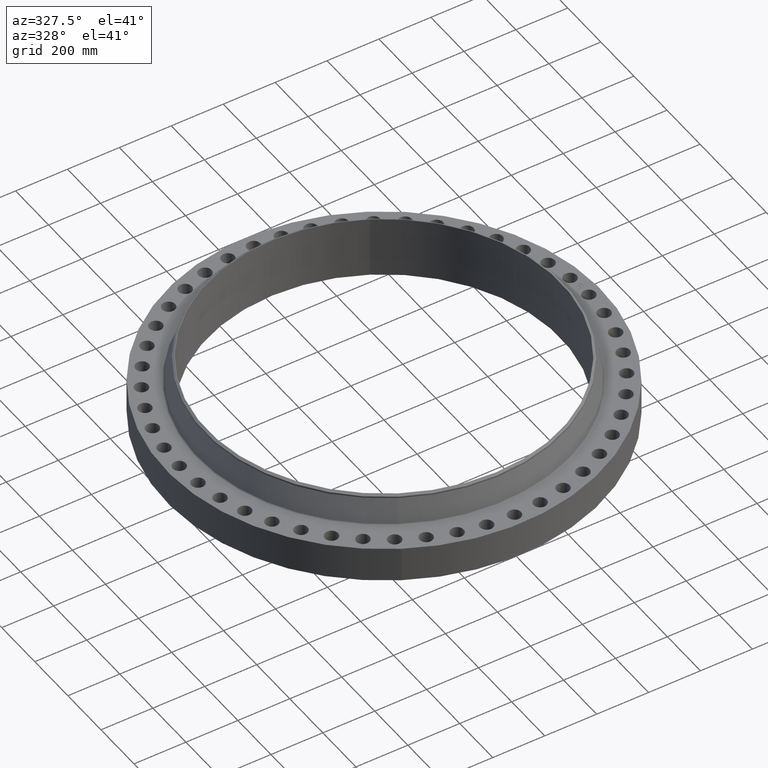
[diagram: clean part render]
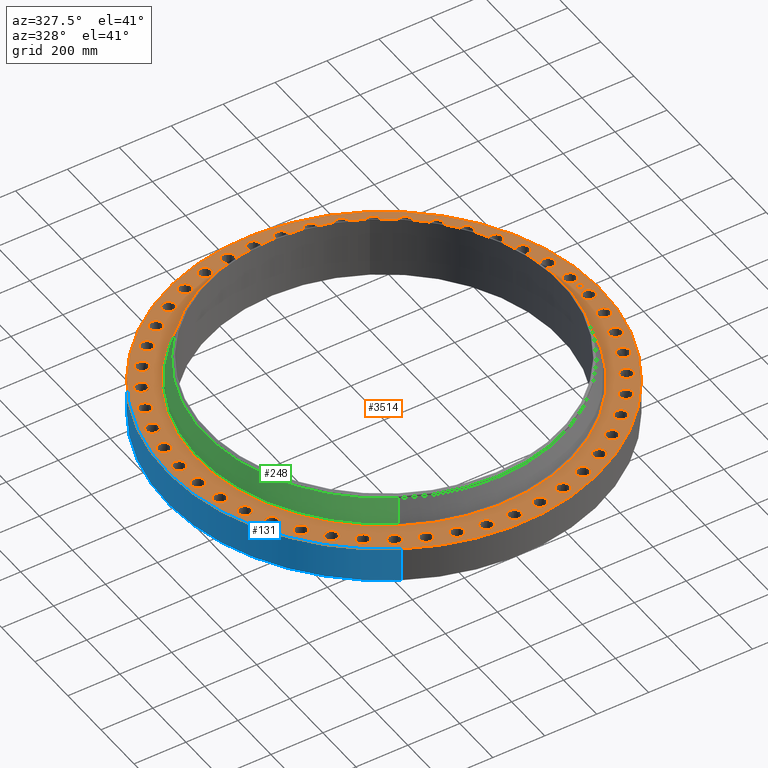
[diagram: same view with three faces highlighted in distinct colors, each labeled with its STEP entity id]
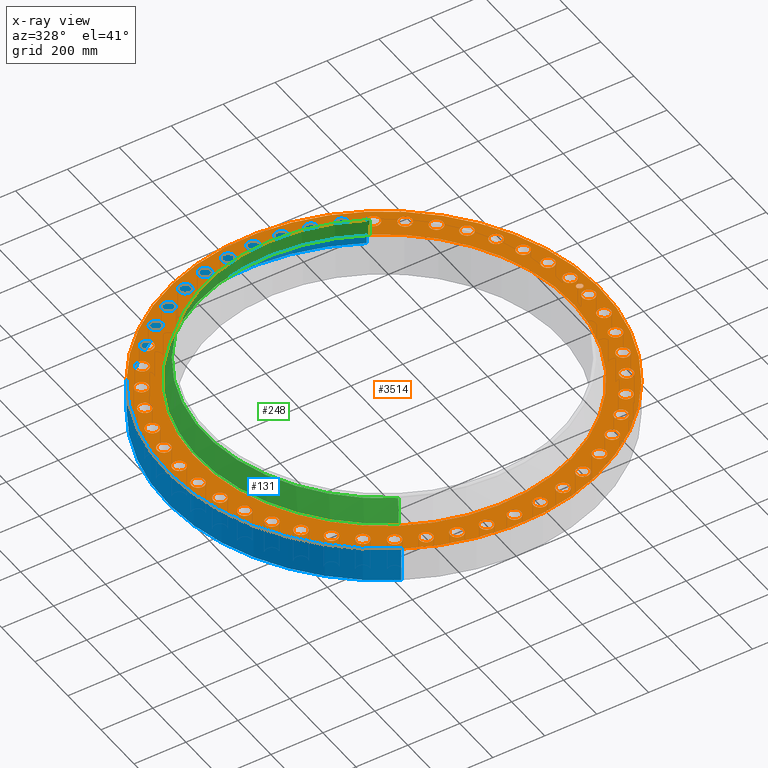
[diagram: x-ray of the same camera — body ghosted, the three highlighted faces saturated]
A machine part, auxiliary view with three faces highlighted in distinct colors.
The next image is the same camera in x-ray (body ghosted, the three faces saturated) — at least one of them is partly hidden behind the body in this view.
Their STEP definitions:

[orange] entity #3514 — the highlighted planar face has unit normal (0, 0, -1).
#65=AXIS2_PLACEMENT_3D('Circle Axis2P3D',#63,#64,$) ;
#82=AXIS2_PLACEMENT_3D('Circle Axis2P3D',#80,#81,$) ;
#115=AXIS2_PLACEMENT_3D('Circle Axis2P3D',#113,#114,$) ;
#139=AXIS2_PLACEMENT_3D('Circle Axis2P3D',#137,#138,$) ;
#156=AXIS2_PLACEMENT_3D('Circle Axis2P3D',#154,#155,$) ;
#191=AXIS2_PLACEMENT_3D('Circle Axis2P3D',#189,#190,$) ;
#1291=AXIS2_PLACEMENT_3D('Circle Axis2P3D',#1289,#1290,$) ;
#1303=AXIS2_PLACEMENT_3D('Circle Axis2P3D',#1301,#1302,$) ;
#1334=AXIS2_PLACEMENT_3D('Circle Axis2P3D',#1332,#1333,$) ;
#1346=AXIS2_PLACEMENT_3D('Circle Axis2P3D',#1344,#1345,$) ;
#1377=AXIS2_PLACEMENT_3D('Circle Axis2P3D',#1375,#1376,$) ;
#1389=AXIS2_PLACEMENT_3D('Circle Axis2P3D',#1387,#1388,$) ;
#1420=AXIS2_PLACEMENT_3D('Circle Axis2P3D',#1418,#1419,$) ;
#1432=AXIS2_PLACEMENT_3D('Circle Axis2P3D',#1430,#1431,$) ;
#1463=AXIS2_PLACEMENT_3D('Circle Axis2P3D',#1461,#1462,$) ;
#1475=AXIS2_PLACEMENT_3D('Circle Axis2P3D',#1473,#1474,$) ;
#1506=AXIS2_PLACEMENT_3D('Circle Axis2P3D',#1504,#1505,$) ;
#1518=AXIS2_PLACEMENT_3D('Circle Axis2P3D',#1516,#1517,$) ;
#1549=AXIS2_PLACEMENT_3D('Circle Axis2P3D',#1547,#1548,$) ;
#1561=AXIS2_PLACEMENT_3D('Circle Axis2P3D',#1559,#1560,$) ;
#1592=AXIS2_PLACEMENT_3D('Circle Axis2P3D',#1590,#1591,$) ;
#1604=AXIS2_PLACEMENT_3D('Circle Axis2P3D',#1602,#1603,$) ;
#1635=AXIS2_PLACEMENT_3D('Circle Axis2P3D',#1633,#1634,$) ;
#1647=AXIS2_PLACEMENT_3D('Circle Axis2P3D',#1645,#1646,$) ;
#1678=AXIS2_PLACEMENT_3D('Circle Axis2P3D',#1676,#1677,$) ;
#1690=AXIS2_PLACEMENT_3D('Circle Axis2P3D',#1688,#1689,$) ;
#1721=AXIS2_PLACEMENT_3D('Circle Axis2P3D',#1719,#1720,$) ;
#1733=AXIS2_PLACEMENT_3D('Circle Axis2P3D',#1731,#1732,$) ;
#1764=AXIS2_PLACEMENT_3D('Circle Axis2P3D',#1762,#1763,$) ;
#1776=AXIS2_PLACEMENT_3D('Circle Axis2P3D',#1774,#1775,$) ;
#1807=AXIS2_PLACEMENT_3D('Circle Axis2P3D',#1805,#1806,$) ;
#1819=AXIS2_PLACEMENT_3D('Circle Axis2P3D',#1817,#1818,$) ;
#1850=AXIS2_PLACEMENT_3D('Circle Axis2P3D',#1848,#1849,$) ;
#1862=AXIS2_PLACEMENT_3D('Circle Axis2P3D',#1860,#1861,$) ;
#1893=AXIS2_PLACEMENT_3D('Circle Axis2P3D',#1891,#1892,$) ;
#1905=AXIS2_PLACEMENT_3D('Circle Axis2P3D',#1903,#1904,$) ;
#1936=AXIS2_PLACEMENT_3D('Circle Axis2P3D',#1934,#1935,$) ;
#1948=AXIS2_PLACEMENT_3D('Circle Axis2P3D',#1946,#1947,$) ;
#1979=AXIS2_PLACEMENT_3D('Circle Axis2P3D',#1977,#1978,$) ;
#1991=AXIS2_PLACEMENT_3D('Circle Axis2P3D',#1989,#1990,$) ;
#2022=AXIS2_PLACEMENT_3D('Circle Axis2P3D',#2020,#2021,$) ;
#2034=AXIS2_PLACEMENT_3D('Circle Axis2P3D',#2032,#2033,$) ;
#2065=AXIS2_PLACEMENT_3D('Circle Axis2P3D',#2063,#2064,$) ;
#2077=AXIS2_PLACEMENT_3D('Circle Axis2P3D',#2075,#2076,$) ;
#2108=AXIS2_PLACEMENT_3D('Circle Axis2P3D',#2106,#2107,$) ;
#2120=AXIS2_PLACEMENT_3D('Circle Axis2P3D',#2118,#2119,$) ;
#2151=AXIS2_PLACEMENT_3D('Circle Axis2P3D',#2149,#2150,$) ;
#2163=AXIS2_PLACEMENT_3D('Circle Axis2P3D',#2161,#2162,$) ;
#2194=AXIS2_PLACEMENT_3D('Circle Axis2P3D',#2192,#2193,$) ;
#2206=AXIS2_PLACEMENT_3D('Circle Axis2P3D',#2204,#2205,$) ;
#2237=AXIS2_PLACEMENT_3D('Circle Axis2P3D',#2235,#2236,$) ;
#2249=AXIS2_PLACEMENT_3D('Circle Axis2P3D',#2247,#2248,$) ;
#2280=AXIS2_PLACEMENT_3D('Circle Axis2P3D',#2278,#2279,$) ;
#2292=AXIS2_PLACEMENT_3D('Circle Axis2P3D',#2290,#2291,$) ;
#2323=AXIS2_PLACEMENT_3D('Circle Axis2P3D',#2321,#2322,$) ;
#2335=AXIS2_PLACEMENT_3D('Circle Axis2P3D',#2333,#2334,$) ;
#2366=AXIS2_PLACEMENT_3D('Circle Axis2P3D',#2364,#2365,$) ;
#2378=AXIS2_PLACEMENT_3D('Circle Axis2P3D',#2376,#2377,$) ;
#2409=AXIS2_PLACEMENT_3D('Circle Axis2P3D',#2407,#2408,$) ;
#2421=AXIS2_PLACEMENT_3D('Circle Axis2P3D',#2419,#2420,$) ;
#2452=AXIS2_PLACEMENT_3D('Circle Axis2P3D',#2450,#2451,$) ;
#2464=AXIS2_PLACEMENT_3D('Circle Axis2P3D',#2462,#2463,$) ;
#2495=AXIS2_PLACEMENT_3D('Circle Axis2P3D',#2493,#2494,$) ;
#2507=AXIS2_PLACEMENT_3D('Circle Axis2P3D',#2505,#2506,$) ;
#2538=AXIS2_PLACEMENT_3D('Circle Axis2P3D',#2536,#2537,$) ;
#2550=AXIS2_PLACEMENT_3D('Circle Axis2P3D',#2548,#2549,$) ;
#2581=AXIS2_PLACEMENT_3D('Circle Axis2P3D',#2579,#2580,$) ;
#2593=AXIS2_PLACEMENT_3D('Circle Axis2P3D',#2591,#2592,$) ;
#2624=AXIS2_PLACEMENT_3D('Circle Axis2P3D',#2622,#2623,$) ;
#2636=AXIS2_PLACEMENT_3D('Circle Axis2P3D',#2634,#2635,$) ;
#2667=AXIS2_PLACEMENT_3D('Circle Axis2P3D',#2665,#2666,$) ;
#2679=AXIS2_PLACEMENT_3D('Circle Axis2P3D',#2677,#2678,$) ;
#2710=AXIS2_PLACEMENT_3D('Circle Axis2P3D',#2708,#2709,$) ;
#2722=AXIS2_PLACEMENT_3D('Circle Axis2P3D',#2720,#2721,$) ;
#2753=AXIS2_PLACEMENT_3D('Circle Axis2P3D',#2751,#2752,$) ;
#2765=AXIS2_PLACEMENT_3D('Circle Axis2P3D',#2763,#2764,$) ;
#2796=AXIS2_PLACEMENT_3D('Circle Axis2P3D',#2794,#2795,$) ;
#2808=AXIS2_PLACEMENT_3D('Circle Axis2P3D',#2806,#2807,$) ;
#2839=AXIS2_PLACEMENT_3D('Circle Axis2P3D',#2837,#2838,$) ;
#2851=AXIS2_PLACEMENT_3D('Circle Axis2P3D',#2849,#2850,$) ;
#2882=AXIS2_PLACEMENT_3D('Circle Axis2P3D',#2880,#2881,$) ;
#2894=AXIS2_PLACEMENT_3D('Circle Axis2P3D',#2892,#2893,$) ;
#2925=AXIS2_PLACEMENT_3D('Circle Axis2P3D',#2923,#2924,$) ;
#2937=AXIS2_PLACEMENT_3D('Circle Axis2P3D',#2935,#2936,$) ;
#2968=AXIS2_PLACEMENT_3D('Circle Axis2P3D',#2966,#2967,$) ;
#2980=AXIS2_PLACEMENT_3D('Circle Axis2P3D',#2978,#2979,$) ;
#3011=AXIS2_PLACEMENT_3D('Circle Axis2P3D',#3009,#3010,$) ;
#3023=AXIS2_PLACEMENT_3D('Circle Axis2P3D',#3021,#3022,$) ;
#3054=AXIS2_PLACEMENT_3D('Circle Axis2P3D',#3052,#3053,$) ;
#3066=AXIS2_PLACEMENT_3D('Circle Axis2P3D',#3064,#3065,$) ;
#3097=AXIS2_PLACEMENT_3D('Circle Axis2P3D',#3095,#3096,$) ;
#3109=AXIS2_PLACEMENT_3D('Circle Axis2P3D',#3107,#3108,$) ;
#3140=AXIS2_PLACEMENT_3D('Circle Axis2P3D',#3138,#3139,$) ;
#3152=AXIS2_PLACEMENT_3D('Circle Axis2P3D',#3150,#3151,$) ;
#3183=AXIS2_PLACEMENT_3D('Circle Axis2P3D',#3181,#3182,$) ;
#3195=AXIS2_PLACEMENT_3D('Circle Axis2P3D',#3193,#3194,$) ;
#3226=AXIS2_PLACEMENT_3D('Circle Axis2P3D',#3224,#3225,$) ;
#3238=AXIS2_PLACEMENT_3D('Circle Axis2P3D',#3236,#3237,$) ;
#3269=AXIS2_PLACEMENT_3D('Circle Axis2P3D',#3267,#3268,$) ;
#3281=AXIS2_PLACEMENT_3D('Circle Axis2P3D',#3279,#3280,$) ;
#3294=AXIS2_PLACEMENT_3D('Plane Axis2P3D',#3291,#3292,#3293) ;
#3498=AXIS2_PLACEMENT_3D('Circle Axis2P3D',#3496,#3497,$) ;
#3507=AXIS2_PLACEMENT_3D('Circle Axis2P3D',#3505,#3506,$) ;
#46=CARTESIAN_POINT('Vertex',(30.1824174382,0.479425538606,5.32000000002)) ;
#60=CARTESIAN_POINT('Vertex',(31.937582562,-0.479425538606,5.32000000002)) ;
#63=CARTESIAN_POINT('Axis2P3D Location',(31.0600000001,0.,5.32000000002)) ;
#80=CARTESIAN_POINT('Axis2P3D Location',(31.0600000001,0.,5.32000000002)) ;
#110=CARTESIAN_POINT('Vertex',(-15.7922772417,-28.9075695888,5.32000000002)) ;
#113=CARTESIAN_POINT('Axis2P3D Location',(0.,0.,5.32000000002)) ;
#117=CARTESIAN_POINT('Vertex',(15.7922772417,28.9075695888,5.32000000002)) ;
#137=CARTESIAN_POINT('Axis2P3D Location',(0.,0.,5.32000000002)) ;
#154=CARTESIAN_POINT('Axis2P3D Location',(0.,0.,5.32000000002)) ;
#158=CARTESIAN_POINT('Vertex',(13.6324779361,24.9540834786,5.32000000002)) ;
#160=CARTESIAN_POINT('Vertex',(-13.6324779361,-24.9540834786,5.32000000002)) ;
#189=CARTESIAN_POINT('Axis2P3D Location',(0.,0.,5.32000000002)) ;
#1279=CARTESIAN_POINT('Vertex',(-29.986780263,3.46427203355,5.32000000002)) ;
#1286=CARTESIAN_POINT('Vertex',(-31.6017745258,4.6440150272,5.32000000002)) ;
#1289=CARTESIAN_POINT('Axis2P3D Location',(-30.7942773944,4.05414353037,5.32000000002)) ;
#1301=CARTESIAN_POINT('Axis2P3D Location',(-30.7942773944,4.05414353037,5.32000000002)) ;
#1322=CARTESIAN_POINT('Vertex',(29.2780609635,-7.34869495073,5.32000000002)) ;
#1329=CARTESIAN_POINT('Vertex',(30.7252513658,-8.72914413111,5.32000000002)) ;
#1332=CARTESIAN_POINT('Axis2P3D Location',(30.0016561647,-8.03891954092,5.32000000002)) ;
#1344=CARTESIAN_POINT('Axis2P3D Location',(30.0016561647,-8.03891954092,5.32000000002)) ;
#1365=CARTESIAN_POINT('Vertex',(-29.2780609635,7.34869495073,5.32000000002)) ;
#1372=CARTESIAN_POINT('Vertex',(-30.7252513658,8.72914413111,5.32000000002)) ;
#1375=CARTESIAN_POINT('Axis2P3D Location',(-30.0016561647,8.03891954092,5.32000000002)) ;
#1387=CARTESIAN_POINT('Axis2P3D Location',(-30.0016561647,8.03891954092,5.32000000002)) ;
#1408=CARTESIAN_POINT('Vertex',(28.0683859236,-11.1073796599,5.32000000002)) ;
#1415=CARTESIAN_POINT('Vertex',(29.3230106363,-12.6649151588,5.32000000002)) ;
#1418=CARTESIAN_POINT('Axis2P3D Location',(28.6956982799,-11.8861474093,5.32000000002)) ;
#1430=CARTESIAN_POINT('Axis2P3D Location',(28.6956982799,-11.8861474093,5.32000000002)) ;
#1451=CARTESIAN_POINT('Vertex',(-28.0683859236,11.1073796599,5.32000000002)) ;
#1458=CARTESIAN_POINT('Vertex',(-29.3230106363,12.6649151588,5.32000000002)) ;
#1461=CARTESIAN_POINT('Axis2P3D Location',(-28.6956982799,11.8861474093,5.32000000002)) ;
#1473=CARTESIAN_POINT('Axis2P3D Location',(-28.6956982799,11.8861474093,5.32000000002)) ;
#1494=CARTESIAN_POINT('Vertex',(26.3784530184,-14.6760140235,5.32000000002)) ;
#1501=CARTESIAN_POINT('Vertex',(27.4190450649,-16.3839859767,5.32000000002)) ;
#1504=CARTESIAN_POINT('Axis2P3D Location',(26.8987490417,-15.5300000001,5.32000000002)) ;
#1516=CARTESIAN_POINT('Axis2P3D Location',(26.8987490417,-15.5300000001,5.32000000002)) ;
#1537=CARTESIAN_POINT('Vertex',(-26.3784530184,14.6760140235,5.32000000002)) ;
#1544=CARTESIAN_POINT('Vertex',(-27.4190450649,16.3839859767,5.32000000002)) ;
#1547=CARTESIAN_POINT('Axis2P3D Location',(-26.8987490417,15.5300000001,5.32000000002)) ;
#1559=CARTESIAN_POINT('Axis2P3D Location',(-26.8987490417,15.5300000001,5.32000000002)) ;
#1580=CARTESIAN_POINT('Vertex',(24.2371774687,-17.9935377182,5.32000000002)) ;
#1587=CARTESIAN_POINT('Vertex',(25.0459320304,-19.822722252,5.32000000002)) ;
#1590=CARTESIAN_POINT('Axis2P3D Location',(24.6415547495,-18.9081299851,5.32000000002)) ;
#1602=CARTESIAN_POINT('Axis2P3D Location',(24.6415547495,-18.9081299851,5.32000000002)) ;
#1623=CARTESIAN_POINT('Vertex',(-24.2371774687,17.9935377182,5.32000000002)) ;
#1630=CARTESIAN_POINT('Vertex',(-25.0459320304,19.822722252,5.32000000002)) ;
#1633=CARTESIAN_POINT('Axis2P3D Location',(-24.6415547495,18.9081299851,5.32000000002)) ;
#1645=CARTESIAN_POINT('Axis2P3D Location',(-24.6415547495,18.9081299851,5.32000000002)) ;
#1666=CARTESIAN_POINT('Vertex',(21.6811970926,-21.0031869938,5.32000000002)) ;
#1673=CARTESIAN_POINT('Vertex',(22.2442761549,-22.9222862537,5.32000000002)) ;
#1676=CARTESIAN_POINT('Axis2P3D Location',(21.9627366237,-21.9627366237,5.32000000002)) ;
#1688=CARTESIAN_POINT('Axis2P3D Location',(21.9627366237,-21.9627366237,5.32000000002)) ;
#1709=CARTESIAN_POINT('Vertex',(-21.6811970926,21.0031869938,5.32000000002)) ;
#1716=CARTESIAN_POINT('Vertex',(-22.2442761549,22.9222862537,5.32000000002)) ;
#1719=CARTESIAN_POINT('Axis2P3D Location',(-21.9627366237,21.9627366237,5.32000000002)) ;
#1731=CARTESIAN_POINT('Axis2P3D Location',(-21.9627366237,21.9627366237,5.32000000002)) ;
#1752=CARTESIAN_POINT('Vertex',(18.7542454231,-23.6534659167,5.32000000002)) ;
#1759=CARTESIAN_POINT('Vertex',(19.0620145471,-25.6296435824,5.32000000002)) ;
#1762=CARTESIAN_POINT('Axis2P3D Location',(18.9081299851,-24.6415547495,5.32000000002)) ;
#1774=CARTESIAN_POINT('Axis2P3D Location',(18.9081299851,-24.6415547495,5.32000000002)) ;
#1795=CARTESIAN_POINT('Vertex',(-18.7542454231,23.6534659167,5.32000000002)) ;
#1802=CARTESIAN_POINT('Vertex',(-19.0620145471,25.6296435824,5.32000000002)) ;
#1805=CARTESIAN_POINT('Axis2P3D Location',(-18.9081299851,24.6415547495,5.32000000002)) ;
#1817=CARTESIAN_POINT('Axis2P3D Location',(-18.9081299851,24.6415547495,5.32000000002)) ;
#1838=CARTESIAN_POINT('Vertex',(15.5064034148,-25.8990274798,5.32000000002)) ;
#1845=CARTESIAN_POINT('Vertex',(15.5535965854,-27.8984706035,5.32000000002)) ;
#1848=CARTESIAN_POINT('Axis2P3D Location',(15.5300000001,-26.8987490417,5.32000000002)) ;
#1860=CARTESIAN_POINT('Axis2P3D Location',(15.5300000001,-26.8987490417,5.32000000002)) ;
#1881=CARTESIAN_POINT('Vertex',(-15.5064034148,25.8990274798,5.32000000002)) ;
#1888=CARTESIAN_POINT('Vertex',(-15.5535965854,27.8984706035,5.32000000002)) ;
#1891=CARTESIAN_POINT('Axis2P3D Location',(-15.5300000001,26.8987490417,5.32000000002)) ;
#1903=CARTESIAN_POINT('Axis2P3D Location',(-15.5300000001,26.8987490417,5.32000000002)) ;
#1924=CARTESIAN_POINT('Vertex',(11.9932425448,-27.7014495022,5.32000000002)) ;
#1931=CARTESIAN_POINT('Vertex',(11.7790522738,-29.6899470576,5.32000000002)) ;
#1934=CARTESIAN_POINT('Axis2P3D Location',(11.8861474093,-28.6956982799,5.32000000002)) ;
#1946=CARTESIAN_POINT('Axis2P3D Location',(11.8861474093,-28.6956982799,5.32000000002)) ;
#1967=CARTESIAN_POINT('Vertex',(-11.9932425448,27.7014495022,5.32000000002)) ;
#1974=CARTESIAN_POINT('Vertex',(-11.7790522738,29.6899470576,5.32000000002)) ;
#1977=CARTESIAN_POINT('Axis2P3D Location',(-11.8861474093,28.6956982799,5.32000000002)) ;
#1989=CARTESIAN_POINT('Axis2P3D Location',(-11.8861474093,28.6956982799,5.32000000002)) ;
#2010=CARTESIAN_POINT('Vertex',(8.27487396977,-29.0298920433,5.32000000002)) ;
#2017=CARTESIAN_POINT('Vertex',(7.80296511206,-30.973420286,5.32000000002)) ;
#2020=CARTESIAN_POINT('Axis2P3D Location',(8.03891954092,-30.0016561647,5.32000000002)) ;
#2032=CARTESIAN_POINT('Axis2P3D Location',(8.03891954092,-30.0016561647,5.32000000002)) ;
#2053=CARTESIAN_POINT('Vertex',(-8.27487396977,29.0298920433,5.32000000002)) ;
#2060=CARTESIAN_POINT('Vertex',(-7.80296511206,30.973420286,5.32000000002)) ;
#2063=CARTESIAN_POINT('Axis2P3D Location',(-8.03891954092,30.0016561647,5.32000000002)) ;
#2075=CARTESIAN_POINT('Axis2P3D Location',(-8.03891954092,30.0016561647,5.32000000002)) ;
#2096=CARTESIAN_POINT('Vertex',(4.41492000687,-29.861625083,5.32000000002)) ;
#2103=CARTESIAN_POINT('Vertex',(3.69336705387,-31.7269297058,5.32000000002)) ;
#2106=CARTESIAN_POINT('Axis2P3D Location',(4.05414353037,-30.7942773944,5.32000000002)) ;
#2118=CARTESIAN_POINT('Axis2P3D Location',(4.05414353037,-30.7942773944,5.32000000002)) ;
#2139=CARTESIAN_POINT('Vertex',(-4.41492000687,29.861625083,5.32000000002)) ;
#2146=CARTESIAN_POINT('Vertex',(-3.69336705387,31.7269297058,5.32000000002)) ;
#2149=CARTESIAN_POINT('Axis2P3D Location',(-4.05414353037,30.7942773944,5.32000000002)) ;
#2161=CARTESIAN_POINT('Axis2P3D Location',(-4.05414353037,30.7942773944,5.32000000002)) ;
#2182=CARTESIAN_POINT('Vertex',(0.479425538606,-30.1824174382,5.32000000002)) ;
#2189=CARTESIAN_POINT('Vertex',(-0.479425538606,-31.937582562,5.32000000002)) ;
#2192=CARTESIAN_POINT('Axis2P3D Location',(-2.57398327374E-015,-31.0600000001,5.32000000002)) ;
#2204=CARTESIAN_POINT('Axis2P3D Location',(-2.57398327374E-015,-31.0600000001,5.32000000002)) ;
#2225=CARTESIAN_POINT('Vertex',(-0.479425538606,30.1824174382,5.32000000002)) ;
#2232=CARTESIAN_POINT('Vertex',(0.479425538606,31.937582562,5.32000000002)) ;
#2235=CARTESIAN_POINT('Axis2P3D Location',(-1.22976968443E-015,31.0600000001,5.32000000002)) ;
#2247=CARTESIAN_POINT('Axis2P3D Location',(-1.22976968443E-015,31.0600000001,5.32000000002)) ;
#2268=CARTESIAN_POINT('Vertex',(-3.46427203355,-29.986780263,5.32000000002)) ;
#2275=CARTESIAN_POINT('Vertex',(-4.6440150272,-31.6017745258,5.32000000002)) ;
#2278=CARTESIAN_POINT('Axis2P3D Location',(-4.05414353037,-30.7942773944,5.32000000002)) ;
#2290=CARTESIAN_POINT('Axis2P3D Location',(-4.05414353037,-30.7942773944,5.32000000002)) ;
#2311=CARTESIAN_POINT('Vertex',(3.46427203355,29.986780263,5.32000000002)) ;
#2318=CARTESIAN_POINT('Vertex',(4.6440150272,31.6017745258,5.32000000002)) ;
#2321=CARTESIAN_POINT('Axis2P3D Location',(4.05414353037,30.7942773944,5.32000000002)) ;
#2333=CARTESIAN_POINT('Axis2P3D Location',(4.05414353037,30.7942773944,5.32000000002)) ;
#2354=CARTESIAN_POINT('Vertex',(-7.34869495073,-29.2780609635,5.32000000002)) ;
#2361=CARTESIAN_POINT('Vertex',(-8.72914413111,-30.7252513658,5.32000000002)) ;
#2364=CARTESIAN_POINT('Axis2P3D Location',(-8.03891954092,-30.0016561647,5.32000000002)) ;
#2376=CARTESIAN_POINT('Axis2P3D Location',(-8.03891954092,-30.0016561647,5.32000000002)) ;
#2397=CARTESIAN_POINT('Vertex',(7.34869495073,29.2780609635,5.32000000002)) ;
#2404=CARTESIAN_POINT('Vertex',(8.72914413111,30.7252513658,5.32000000002)) ;
#2407=CARTESIAN_POINT('Axis2P3D Location',(8.03891954092,30.0016561647,5.32000000002)) ;
#2419=CARTESIAN_POINT('Axis2P3D Location',(8.03891954092,30.0016561647,5.32000000002)) ;
#2440=CARTESIAN_POINT('Vertex',(-11.1073796599,-28.0683859236,5.32000000002)) ;
#2447=CARTESIAN_POINT('Vertex',(-12.6649151588,-29.3230106363,5.32000000002)) ;
#2450=CARTESIAN_POINT('Axis2P3D Location',(-11.8861474093,-28.6956982799,5.32000000002)) ;
#2462=CARTESIAN_POINT('Axis2P3D Location',(-11.8861474093,-28.6956982799,5.32000000002)) ;
#2483=CARTESIAN_POINT('Vertex',(11.1073796599,28.0683859236,5.32000000002)) ;
#2490=CARTESIAN_POINT('Vertex',(12.6649151588,29.3230106363,5.32000000002)) ;
#2493=CARTESIAN_POINT('Axis2P3D Location',(11.8861474093,28.6956982799,5.32000000002)) ;
#2505=CARTESIAN_POINT('Axis2P3D Location',(11.8861474093,28.6956982799,5.32000000002)) ;
#2526=CARTESIAN_POINT('Vertex',(-14.6760140235,-26.3784530184,5.32000000002)) ;
#2533=CARTESIAN_POINT('Vertex',(-16.3839859767,-27.4190450649,5.32000000002)) ;
#2536=CARTESIAN_POINT('Axis2P3D Location',(-15.5300000001,-26.8987490417,5.32000000002)) ;
#2548=CARTESIAN_POINT('Axis2P3D Location',(-15.5300000001,-26.8987490417,5.32000000002)) ;
#2569=CARTESIAN_POINT('Vertex',(14.6760140235,26.3784530184,5.32000000002)) ;
#2576=CARTESIAN_POINT('Vertex',(16.3839859767,27.4190450649,5.32000000002)) ;
#2579=CARTESIAN_POINT('Axis2P3D Location',(15.5300000001,26.8987490417,5.32000000002)) ;
#2591=CARTESIAN_POINT('Axis2P3D Location',(15.5300000001,26.8987490417,5.32000000002)) ;
#2612=CARTESIAN_POINT('Vertex',(-17.9935377182,-24.2371774687,5.32000000002)) ;
#2619=CARTESIAN_POINT('Vertex',(-19.822722252,-25.0459320304,5.32000000002)) ;
#2622=CARTESIAN_POINT('Axis2P3D Location',(-18.9081299851,-24.6415547495,5.32000000002)) ;
#2634=CARTESIAN_POINT('Axis2P3D Location',(-18.9081299851,-24.6415547495,5.32000000002)) ;
#2655=CARTESIAN_POINT('Vertex',(17.9935377182,24.2371774687,5.32000000002)) ;
#2662=CARTESIAN_POINT('Vertex',(19.822722252,25.0459320304,5.32000000002)) ;
#2665=CARTESIAN_POINT('Axis2P3D Location',(18.9081299851,24.6415547495,5.32000000002)) ;
#2677=CARTESIAN_POINT('Axis2P3D Location',(18.9081299851,24.6415547495,5.32000000002)) ;
#2698=CARTESIAN_POINT('Vertex',(-21.0031869938,-21.6811970926,5.32000000002)) ;
#2705=CARTESIAN_POINT('Vertex',(-22.9222862537,-22.2442761549,5.32000000002)) ;
#2708=CARTESIAN_POINT('Axis2P3D Location',(-21.9627366237,-21.9627366237,5.32000000002)) ;
#2720=CARTESIAN_POINT('Axis2P3D Location',(-21.9627366237,-21.9627366237,5.32000000002)) ;
#2741=CARTESIAN_POINT('Vertex',(21.0031869938,21.6811970926,5.32000000002)) ;
#2748=CARTESIAN_POINT('Vertex',(22.9222862537,22.2442761549,5.32000000002)) ;
#2751=CARTESIAN_POINT('Axis2P3D Location',(21.9627366237,21.9627366237,5.32000000002)) ;
#2763=CARTESIAN_POINT('Axis2P3D Location',(21.9627366237,21.9627366237,5.32000000002)) ;
#2784=CARTESIAN_POINT('Vertex',(-23.6534659167,-18.7542454231,5.32000000002)) ;
#2791=CARTESIAN_POINT('Vertex',(-25.6296435824,-19.0620145471,5.32000000002)) ;
#2794=CARTESIAN_POINT('Axis2P3D Location',(-24.6415547495,-18.9081299851,5.32000000002)) ;
#2806=CARTESIAN_POINT('Axis2P3D Location',(-24.6415547495,-18.9081299851,5.32000000002)) ;
#2827=CARTESIAN_POINT('Vertex',(23.6534659167,18.7542454231,5.32000000002)) ;
#2834=CARTESIAN_POINT('Vertex',(25.6296435824,19.0620145471,5.32000000002)) ;
#2837=CARTESIAN_POINT('Axis2P3D Location',(24.6415547495,18.9081299851,5.32000000002)) ;
#2849=CARTESIAN_POINT('Axis2P3D Location',(24.6415547495,18.9081299851,5.32000000002)) ;
#2870=CARTESIAN_POINT('Vertex',(-25.8990274798,-15.5064034148,5.32000000002)) ;
#2877=CARTESIAN_POINT('Vertex',(-27.8984706035,-15.5535965854,5.32000000002)) ;
#2880=CARTESIAN_POINT('Axis2P3D Location',(-26.8987490417,-15.5300000001,5.32000000002)) ;
#2892=CARTESIAN_POINT('Axis2P3D Location',(-26.8987490417,-15.5300000001,5.32000000002)) ;
#2913=CARTESIAN_POINT('Vertex',(25.8990274798,15.5064034148,5.32000000002)) ;
#2920=CARTESIAN_POINT('Vertex',(27.8984706035,15.5535965854,5.32000000002)) ;
#2923=CARTESIAN_POINT('Axis2P3D Location',(26.8987490417,15.5300000001,5.32000000002)) ;
#2935=CARTESIAN_POINT('Axis2P3D Location',(26.8987490417,15.5300000001,5.32000000002)) ;
#2956=CARTESIAN_POINT('Vertex',(-27.7014495022,-11.9932425448,5.32000000002)) ;
#2963=CARTESIAN_POINT('Vertex',(-29.6899470576,-11.7790522738,5.32000000002)) ;
#2966=CARTESIAN_POINT('Axis2P3D Location',(-28.6956982799,-11.8861474093,5.32000000002)) ;
#2978=CARTESIAN_POINT('Axis2P3D Location',(-28.6956982799,-11.8861474093,5.32000000002)) ;
#2999=CARTESIAN_POINT('Vertex',(27.7014495022,11.9932425448,5.32000000002)) ;
#3006=CARTESIAN_POINT('Vertex',(29.6899470576,11.7790522738,5.32000000002)) ;
#3009=CARTESIAN_POINT('Axis2P3D Location',(28.6956982799,11.8861474093,5.32000000002)) ;
#3021=CARTESIAN_POINT('Axis2P3D Location',(28.6956982799,11.8861474093,5.32000000002)) ;
#3042=CARTESIAN_POINT('Vertex',(-29.0298920433,-8.27487396977,5.32000000002)) ;
#3049=CARTESIAN_POINT('Vertex',(-30.973420286,-7.80296511206,5.32000000002)) ;
#3052=CARTESIAN_POINT('Axis2P3D Location',(-30.0016561647,-8.03891954092,5.32000000002)) ;
#3064=CARTESIAN_POINT('Axis2P3D Location',(-30.0016561647,-8.03891954092,5.32000000002)) ;
#3085=CARTESIAN_POINT('Vertex',(29.0298920433,8.27487396977,5.32000000002)) ;
#3092=CARTESIAN_POINT('Vertex',(30.973420286,7.80296511206,5.32000000002)) ;
#3095=CARTESIAN_POINT('Axis2P3D Location',(30.0016561647,8.03891954092,5.32000000002)) ;
#3107=CARTESIAN_POINT('Axis2P3D Location',(30.0016561647,8.03891954092,5.32000000002)) ;
#3128=CARTESIAN_POINT('Vertex',(-29.861625083,-4.41492000687,5.32000000002)) ;
#3135=CARTESIAN_POINT('Vertex',(-31.7269297058,-3.69336705387,5.32000000002)) ;
#3138=CARTESIAN_POINT('Axis2P3D Location',(-30.7942773944,-4.05414353037,5.32000000002)) ;
#3150=CARTESIAN_POINT('Axis2P3D Location',(-30.7942773944,-4.05414353037,5.32000000002)) ;
#3171=CARTESIAN_POINT('Vertex',(29.861625083,4.41492000687,5.32000000002)) ;
#3178=CARTESIAN_POINT('Vertex',(31.7269297058,3.69336705387,5.32000000002)) ;
#3181=CARTESIAN_POINT('Axis2P3D Location',(30.7942773944,4.05414353037,5.32000000002)) ;
#3193=CARTESIAN_POINT('Axis2P3D Location',(30.7942773944,4.05414353037,5.32000000002)) ;
#3214=CARTESIAN_POINT('Vertex',(-30.1824174382,-0.479425538606,5.32000000002)) ;
#3221=CARTESIAN_POINT('Vertex',(-31.937582562,0.479425538606,5.32000000002)) ;
#3224=CARTESIAN_POINT('Axis2P3D Location',(-31.0600000001,-3.80375295817E-015,5.32000000002)) ;
#3236=CARTESIAN_POINT('Axis2P3D Location',(-31.0600000001,-3.80375295817E-015,5.32000000002)) ;
#3257=CARTESIAN_POINT('Vertex',(29.986780263,-3.46427203355,5.32000000002)) ;
#3264=CARTESIAN_POINT('Vertex',(31.6017745258,-4.6440150272,5.32000000002)) ;
#3267=CARTESIAN_POINT('Axis2P3D Location',(30.7942773944,-4.05414353037,5.32000000002)) ;
#3279=CARTESIAN_POINT('Axis2P3D Location',(30.7942773944,-4.05414353037,5.32000000002)) ;
#3291=CARTESIAN_POINT('Axis2P3D Location',(0.,32.9400000001,5.32000000002)) ;
#3496=CARTESIAN_POINT('Axis2P3D Location',(30.9934981559,2.0314211939,5.32000000002)) ;
#3500=CARTESIAN_POINT('Vertex',(30.9607966663,2.53034951197,5.32000000002)) ;
#3502=CARTESIAN_POINT('Vertex',(31.0261996456,1.53249287582,5.32000000002)) ;
#3505=CARTESIAN_POINT('Axis2P3D Location',(30.9934981559,2.0314211939,5.32000000002)) ;
#64=DIRECTION('Axis2P3D Direction',(0.,-0.,-0.0393700787402)) ;
#81=DIRECTION('Axis2P3D Direction',(0.,-0.,-0.0393700787402)) ;
#114=DIRECTION('Axis2P3D Direction',(0.,0.,-0.0393700787402)) ;
#138=DIRECTION('Axis2P3D Direction',(0.,0.,-0.0393700787402)) ;
#155=DIRECTION('Axis2P3D Direction',(0.,0.,-0.0393700787402)) ;
#190=DIRECTION('Axis2P3D Direction',(0.,0.,-0.0393700787402)) ;
#1290=DIRECTION('Axis2P3D Direction',(0.,0.,-0.0393700787402)) ;
#1302=DIRECTION('Axis2P3D Direction',(0.,0.,-0.0393700787402)) ;
#1333=DIRECTION('Axis2P3D Direction',(0.,-0.,-0.0393700787402)) ;
#1345=DIRECTION('Axis2P3D Direction',(0.,-0.,-0.0393700787402)) ;
#1376=DIRECTION('Axis2P3D Direction',(0.,0.,-0.0393700787402)) ;
#1388=DIRECTION('Axis2P3D Direction',(0.,0.,-0.0393700787402)) ;
#1419=DIRECTION('Axis2P3D Direction',(0.,-0.,-0.0393700787402)) ;
#1431=DIRECTION('Axis2P3D Direction',(0.,-0.,-0.0393700787402)) ;
#1462=DIRECTION('Axis2P3D Direction',(0.,0.,-0.0393700787402)) ;
#1474=DIRECTION('Axis2P3D Direction',(0.,0.,-0.0393700787402)) ;
#1505=DIRECTION('Axis2P3D Direction',(0.,-0.,-0.0393700787402)) ;
#1517=DIRECTION('Axis2P3D Direction',(0.,-0.,-0.0393700787402)) ;
#1548=DIRECTION('Axis2P3D Direction',(0.,0.,-0.0393700787402)) ;
#1560=DIRECTION('Axis2P3D Direction',(0.,0.,-0.0393700787402)) ;
#1591=DIRECTION('Axis2P3D Direction',(0.,-0.,-0.0393700787402)) ;
#1603=DIRECTION('Axis2P3D Direction',(0.,-0.,-0.0393700787402)) ;
#1634=DIRECTION('Axis2P3D Direction',(0.,0.,-0.0393700787402)) ;
#1646=DIRECTION('Axis2P3D Direction',(0.,0.,-0.0393700787402)) ;
#1677=DIRECTION('Axis2P3D Direction',(0.,-0.,-0.0393700787402)) ;
#1689=DIRECTION('Axis2P3D Direction',(0.,-0.,-0.0393700787402)) ;
#1720=DIRECTION('Axis2P3D Direction',(0.,0.,-0.0393700787402)) ;
#1732=DIRECTION('Axis2P3D Direction',(0.,0.,-0.0393700787402)) ;
#1763=DIRECTION('Axis2P3D Direction',(0.,-0.,-0.0393700787402)) ;
#1775=DIRECTION('Axis2P3D Direction',(0.,-0.,-0.0393700787402)) ;
#1806=DIRECTION('Axis2P3D Direction',(0.,0.,-0.0393700787402)) ;
#1818=DIRECTION('Axis2P3D Direction',(0.,0.,-0.0393700787402)) ;
#1849=DIRECTION('Axis2P3D Direction',(0.,-0.,-0.0393700787402)) ;
#1861=DIRECTION('Axis2P3D Direction',(0.,-0.,-0.0393700787402)) ;
#1892=DIRECTION('Axis2P3D Direction',(0.,0.,-0.0393700787402)) ;
#1904=DIRECTION('Axis2P3D Direction',(0.,0.,-0.0393700787402)) ;
#1935=DIRECTION('Axis2P3D Direction',(0.,-0.,-0.0393700787402)) ;
#1947=DIRECTION('Axis2P3D Direction',(0.,-0.,-0.0393700787402)) ;
#1978=DIRECTION('Axis2P3D Direction',(0.,0.,-0.0393700787402)) ;
#1990=DIRECTION('Axis2P3D Direction',(0.,0.,-0.0393700787402)) ;
#2021=DIRECTION('Axis2P3D Direction',(0.,-0.,-0.0393700787402)) ;
#2033=DIRECTION('Axis2P3D Direction',(0.,-0.,-0.0393700787402)) ;
#2064=DIRECTION('Axis2P3D Direction',(0.,0.,-0.0393700787402)) ;
#2076=DIRECTION('Axis2P3D Direction',(0.,0.,-0.0393700787402)) ;
#2107=DIRECTION('Axis2P3D Direction',(0.,-0.,-0.0393700787402)) ;
#2119=DIRECTION('Axis2P3D Direction',(0.,-0.,-0.0393700787402)) ;
#2150=DIRECTION('Axis2P3D Direction',(0.,0.,-0.0393700787402)) ;
#2162=DIRECTION('Axis2P3D Direction',(0.,0.,-0.0393700787402)) ;
#2193=DIRECTION('Axis2P3D Direction',(0.,-0.,-0.0393700787402)) ;
#2205=DIRECTION('Axis2P3D Direction',(0.,-0.,-0.0393700787402)) ;
#2236=DIRECTION('Axis2P3D Direction',(0.,0.,-0.0393700787402)) ;
#2248=DIRECTION('Axis2P3D Direction',(0.,0.,-0.0393700787402)) ;
#2279=DIRECTION('Axis2P3D Direction',(-0.,0.,-0.0393700787402)) ;
#2291=DIRECTION('Axis2P3D Direction',(-0.,0.,-0.0393700787402)) ;
#2322=DIRECTION('Axis2P3D Direction',(0.,0.,-0.0393700787402)) ;
#2334=DIRECTION('Axis2P3D Direction',(0.,0.,-0.0393700787402)) ;
#2365=DIRECTION('Axis2P3D Direction',(-0.,0.,-0.0393700787402)) ;
#2377=DIRECTION('Axis2P3D Direction',(-0.,0.,-0.0393700787402)) ;
#2408=DIRECTION('Axis2P3D Direction',(0.,0.,-0.0393700787402)) ;
#2420=DIRECTION('Axis2P3D Direction',(0.,0.,-0.0393700787402)) ;
#2451=DIRECTION('Axis2P3D Direction',(-0.,0.,-0.0393700787402)) ;
#2463=DIRECTION('Axis2P3D Direction',(-0.,0.,-0.0393700787402)) ;
#2494=DIRECTION('Axis2P3D Direction',(0.,0.,-0.0393700787402)) ;
#2506=DIRECTION('Axis2P3D Direction',(0.,0.,-0.0393700787402)) ;
#2537=DIRECTION('Axis2P3D Direction',(-0.,0.,-0.0393700787402)) ;
#2549=DIRECTION('Axis2P3D Direction',(-0.,0.,-0.0393700787402)) ;
#2580=DIRECTION('Axis2P3D Direction',(0.,0.,-0.0393700787402)) ;
#2592=DIRECTION('Axis2P3D Direction',(0.,0.,-0.0393700787402)) ;
#2623=DIRECTION('Axis2P3D Direction',(-0.,0.,-0.0393700787402)) ;
#2635=DIRECTION('Axis2P3D Direction',(-0.,0.,-0.0393700787402)) ;
#2666=DIRECTION('Axis2P3D Direction',(0.,0.,-0.0393700787402)) ;
#2678=DIRECTION('Axis2P3D Direction',(0.,0.,-0.0393700787402)) ;
#2709=DIRECTION('Axis2P3D Direction',(-0.,0.,-0.0393700787402)) ;
#2721=DIRECTION('Axis2P3D Direction',(-0.,0.,-0.0393700787402)) ;
#2752=DIRECTION('Axis2P3D Direction',(0.,0.,-0.0393700787402)) ;
#2764=DIRECTION('Axis2P3D Direction',(0.,0.,-0.0393700787402)) ;
#2795=DIRECTION('Axis2P3D Direction',(-0.,0.,-0.0393700787402)) ;
#2807=DIRECTION('Axis2P3D Direction',(-0.,0.,-0.0393700787402)) ;
#2838=DIRECTION('Axis2P3D Direction',(0.,0.,-0.0393700787402)) ;
#2850=DIRECTION('Axis2P3D Direction',(0.,0.,-0.0393700787402)) ;
#2881=DIRECTION('Axis2P3D Direction',(-0.,0.,-0.0393700787402)) ;
#2893=DIRECTION('Axis2P3D Direction',(-0.,0.,-0.0393700787402)) ;
#2924=DIRECTION('Axis2P3D Direction',(0.,0.,-0.0393700787402)) ;
#2936=DIRECTION('Axis2P3D Direction',(0.,0.,-0.0393700787402)) ;
#2967=DIRECTION('Axis2P3D Direction',(-0.,0.,-0.0393700787402)) ;
#2979=DIRECTION('Axis2P3D Direction',(-0.,0.,-0.0393700787402)) ;
#3010=DIRECTION('Axis2P3D Direction',(0.,0.,-0.0393700787402)) ;
#3022=DIRECTION('Axis2P3D Direction',(0.,0.,-0.0393700787402)) ;
#3053=DIRECTION('Axis2P3D Direction',(-0.,0.,-0.0393700787402)) ;
#3065=DIRECTION('Axis2P3D Direction',(-0.,0.,-0.0393700787402)) ;
#3096=DIRECTION('Axis2P3D Direction',(0.,0.,-0.0393700787402)) ;
#3108=DIRECTION('Axis2P3D Direction',(0.,0.,-0.0393700787402)) ;
#3139=DIRECTION('Axis2P3D Direction',(-0.,0.,-0.0393700787402)) ;
#3151=DIRECTION('Axis2P3D Direction',(-0.,0.,-0.0393700787402)) ;
#3182=DIRECTION('Axis2P3D Direction',(0.,0.,-0.0393700787402)) ;
#3194=DIRECTION('Axis2P3D Direction',(0.,0.,-0.0393700787402)) ;
#3225=DIRECTION('Axis2P3D Direction',(-0.,0.,-0.0393700787402)) ;
#3237=DIRECTION('Axis2P3D Direction',(-0.,0.,-0.0393700787402)) ;
#3268=DIRECTION('Axis2P3D Direction',(0.,-0.,-0.0393700787402)) ;
#3280=DIRECTION('Axis2P3D Direction',(0.,-0.,-0.0393700787402)) ;
#3292=DIRECTION('Axis2P3D Direction',(0.,0.,-0.0393700787402)) ;
#3293=DIRECTION('Axis2P3D XDirection',(0.0393700787402,0.,0.)) ;
#3497=DIRECTION('Axis2P3D Direction',(0.,0.,-0.0393700787402)) ;
#3506=DIRECTION('Axis2P3D Direction',(0.,0.,-0.0393700787402)) ;
#3297=ORIENTED_EDGE('',*,*,#141,.F.) ;
#3298=ORIENTED_EDGE('',*,*,#119,.F.) ;
#3301=ORIENTED_EDGE('',*,*,#67,.T.) ;
#3302=ORIENTED_EDGE('',*,*,#84,.T.) ;
#3305=ORIENTED_EDGE('',*,*,#193,.T.) ;
#3306=ORIENTED_EDGE('',*,*,#162,.T.) ;
#3309=ORIENTED_EDGE('',*,*,#3283,.T.) ;
#3310=ORIENTED_EDGE('',*,*,#3271,.T.) ;
#3313=ORIENTED_EDGE('',*,*,#1348,.T.) ;
#3314=ORIENTED_EDGE('',*,*,#1336,.T.) ;
#3317=ORIENTED_EDGE('',*,*,#1434,.T.) ;
#3318=ORIENTED_EDGE('',*,*,#1422,.T.) ;
#3321=ORIENTED_EDGE('',*,*,#1520,.T.) ;
#3322=ORIENTED_EDGE('',*,*,#1508,.T.) ;
#3325=ORIENTED_EDGE('',*,*,#1606,.T.) ;
#3326=ORIENTED_EDGE('',*,*,#1594,.T.) ;
#3329=ORIENTED_EDGE('',*,*,#1692,.T.) ;
#3330=ORIENTED_EDGE('',*,*,#1680,.T.) ;
#3333=ORIENTED_EDGE('',*,*,#1778,.T.) ;
#3334=ORIENTED_EDGE('',*,*,#1766,.T.) ;
#3337=ORIENTED_EDGE('',*,*,#1864,.T.) ;
#3338=ORIENTED_EDGE('',*,*,#1852,.T.) ;
#3341=ORIENTED_EDGE('',*,*,#1950,.T.) ;
#3342=ORIENTED_EDGE('',*,*,#1938,.T.) ;
#3345=ORIENTED_EDGE('',*,*,#2036,.T.) ;
#3346=ORIENTED_EDGE('',*,*,#2024,.T.) ;
#3349=ORIENTED_EDGE('',*,*,#2122,.T.) ;
#3350=ORIENTED_EDGE('',*,*,#2110,.T.) ;
#3353=ORIENTED_EDGE('',*,*,#2208,.T.) ;
#3354=ORIENTED_EDGE('',*,*,#2196,.T.) ;
#3357=ORIENTED_EDGE('',*,*,#2294,.T.) ;
#3358=ORIENTED_EDGE('',*,*,#2282,.T.) ;
#3361=ORIENTED_EDGE('',*,*,#2380,.T.) ;
#3362=ORIENTED_EDGE('',*,*,#2368,.T.) ;
#3365=ORIENTED_EDGE('',*,*,#2466,.T.) ;
#3366=ORIENTED_EDGE('',*,*,#2454,.T.) ;
#3369=ORIENTED_EDGE('',*,*,#2552,.T.) ;
#3370=ORIENTED_EDGE('',*,*,#2540,.T.) ;
#3373=ORIENTED_EDGE('',*,*,#2638,.T.) ;
#3374=ORIENTED_EDGE('',*,*,#2626,.T.) ;
#3377=ORIENTED_EDGE('',*,*,#2724,.T.) ;
#3378=ORIENTED_EDGE('',*,*,#2712,.T.) ;
#3381=ORIENTED_EDGE('',*,*,#2810,.T.) ;
#3382=ORIENTED_EDGE('',*,*,#2798,.T.) ;
#3385=ORIENTED_EDGE('',*,*,#2896,.T.) ;
#3386=ORIENTED_EDGE('',*,*,#2884,.T.) ;
#3389=ORIENTED_EDGE('',*,*,#2982,.T.) ;
#3390=ORIENTED_EDGE('',*,*,#2970,.T.) ;
#3393=ORIENTED_EDGE('',*,*,#3068,.T.) ;
#3394=ORIENTED_EDGE('',*,*,#3056,.T.) ;
#3397=ORIENTED_EDGE('',*,*,#3154,.T.) ;
#3398=ORIENTED_EDGE('',*,*,#3142,.T.) ;
#3401=ORIENTED_EDGE('',*,*,#3240,.T.) ;
#3402=ORIENTED_EDGE('',*,*,#3228,.T.) ;
#3405=ORIENTED_EDGE('',*,*,#1305,.T.) ;
#3406=ORIENTED_EDGE('',*,*,#1293,.T.) ;
#3409=ORIENTED_EDGE('',*,*,#1391,.T.) ;
#3410=ORIENTED_EDGE('',*,*,#1379,.T.) ;
#3413=ORIENTED_EDGE('',*,*,#1477,.T.) ;
#3414=ORIENTED_EDGE('',*,*,#1465,.T.) ;
#3417=ORIENTED_EDGE('',*,*,#1563,.T.) ;
#3418=ORIENTED_EDGE('',*,*,#1551,.T.) ;
#3421=ORIENTED_EDGE('',*,*,#1649,.T.) ;
#3422=ORIENTED_EDGE('',*,*,#1637,.T.) ;
#3425=ORIENTED_EDGE('',*,*,#1735,.T.) ;
#3426=ORIENTED_EDGE('',*,*,#1723,.T.) ;
#3429=ORIENTED_EDGE('',*,*,#1821,.T.) ;
#3430=ORIENTED_EDGE('',*,*,#1809,.T.) ;
#3433=ORIENTED_EDGE('',*,*,#1907,.T.) ;
#3434=ORIENTED_EDGE('',*,*,#1895,.T.) ;
#3437=ORIENTED_EDGE('',*,*,#1993,.T.) ;
#3438=ORIENTED_EDGE('',*,*,#1981,.T.) ;
#3441=ORIENTED_EDGE('',*,*,#2079,.T.) ;
#3442=ORIENTED_EDGE('',*,*,#2067,.T.) ;
#3445=ORIENTED_EDGE('',*,*,#2165,.T.) ;
#3446=ORIENTED_EDGE('',*,*,#2153,.T.) ;
#3449=ORIENTED_EDGE('',*,*,#2251,.T.) ;
#3450=ORIENTED_EDGE('',*,*,#2239,.T.) ;
#3453=ORIENTED_EDGE('',*,*,#2337,.T.) ;
#3454=ORIENTED_EDGE('',*,*,#2325,.T.) ;
#3457=ORIENTED_EDGE('',*,*,#2423,.T.) ;
#3458=ORIENTED_EDGE('',*,*,#2411,.T.) ;
#3461=ORIENTED_EDGE('',*,*,#2509,.T.) ;
#3462=ORIENTED_EDGE('',*,*,#2497,.T.) ;
#3465=ORIENTED_EDGE('',*,*,#2595,.T.) ;
#3466=ORIENTED_EDGE('',*,*,#2583,.T.) ;
#3469=ORIENTED_EDGE('',*,*,#2681,.T.) ;
#3470=ORIENTED_EDGE('',*,*,#2669,.T.) ;
#3473=ORIENTED_EDGE('',*,*,#2767,.T.) ;
#3474=ORIENTED_EDGE('',*,*,#2755,.T.) ;
#3477=ORIENTED_EDGE('',*,*,#2853,.T.) ;
#3478=ORIENTED_EDGE('',*,*,#2841,.T.) ;
#3481=ORIENTED_EDGE('',*,*,#2939,.T.) ;
#3482=ORIENTED_EDGE('',*,*,#2927,.T.) ;
#3485=ORIENTED_EDGE('',*,*,#3025,.T.) ;
#3486=ORIENTED_EDGE('',*,*,#3013,.T.) ;
#3489=ORIENTED_EDGE('',*,*,#3111,.T.) ;
#3490=ORIENTED_EDGE('',*,*,#3099,.T.) ;
#3493=ORIENTED_EDGE('',*,*,#3197,.T.) ;
#3494=ORIENTED_EDGE('',*,*,#3185,.T.) ;
#3511=ORIENTED_EDGE('',*,*,#3504,.T.) ;
#3512=ORIENTED_EDGE('',*,*,#3509,.T.) ;
#3303=FACE_BOUND('',#3300,.T.) ;
#3307=FACE_BOUND('',#3304,.T.) ;
#3311=FACE_BOUND('',#3308,.T.) ;
#3315=FACE_BOUND('',#3312,.T.) ;
#3319=FACE_BOUND('',#3316,.T.) ;
#3323=FACE_BOUND('',#3320,.T.) ;
#3327=FACE_BOUND('',#3324,.T.) ;
#3331=FACE_BOUND('',#3328,.T.) ;
#3335=FACE_BOUND('',#3332,.T.) ;
#3339=FACE_BOUND('',#3336,.T.) ;
#3343=FACE_BOUND('',#3340,.T.) ;
#3347=FACE_BOUND('',#3344,.T.) ;
#3351=FACE_BOUND('',#3348,.T.) ;
#3355=FACE_BOUND('',#3352,.T.) ;
#3359=FACE_BOUND('',#3356,.T.) ;
#3363=FACE_BOUND('',#3360,.T.) ;
#3367=FACE_BOUND('',#3364,.T.) ;
#3371=FACE_BOUND('',#3368,.T.) ;
#3375=FACE_BOUND('',#3372,.T.) ;
#3379=FACE_BOUND('',#3376,.T.) ;
#3383=FACE_BOUND('',#3380,.T.) ;
#3387=FACE_BOUND('',#3384,.T.) ;
#3391=FACE_BOUND('',#3388,.T.) ;
#3395=FACE_BOUND('',#3392,.T.) ;
#3399=FACE_BOUND('',#3396,.T.) ;
#3403=FACE_BOUND('',#3400,.T.) ;
#3407=FACE_BOUND('',#3404,.T.) ;
#3411=FACE_BOUND('',#3408,.T.) ;
#3415=FACE_BOUND('',#3412,.T.) ;
#3419=FACE_BOUND('',#3416,.T.) ;
#3423=FACE_BOUND('',#3420,.T.) ;
#3427=FACE_BOUND('',#3424,.T.) ;
#3431=FACE_BOUND('',#3428,.T.) ;
#3435=FACE_BOUND('',#3432,.T.) ;
#3439=FACE_BOUND('',#3436,.T.) ;
#3443=FACE_BOUND('',#3440,.T.) ;
#3447=FACE_BOUND('',#3444,.T.) ;
#3451=FACE_BOUND('',#3448,.T.) ;
#3455=FACE_BOUND('',#3452,.T.) ;
#3459=FACE_BOUND('',#3456,.T.) ;
#3463=FACE_BOUND('',#3460,.T.) ;
#3467=FACE_BOUND('',#3464,.T.) ;
#3471=FACE_BOUND('',#3468,.T.) ;
#3475=FACE_BOUND('',#3472,.T.) ;
#3479=FACE_BOUND('',#3476,.T.) ;
#3483=FACE_BOUND('',#3480,.T.) ;
#3487=FACE_BOUND('',#3484,.T.) ;
#3491=FACE_BOUND('',#3488,.T.) ;
#3495=FACE_BOUND('',#3492,.T.) ;
#3513=FACE_BOUND('',#3510,.T.) ;
#3514=ADVANCED_FACE('PartBody',(#3299,#3303,#3307,#3311,#3315,#3319,#3323,#3327,#3331,#3335,#3339,#3343,#3347,#3351,#3355,#3359,#3363,#3367,#3371,#3375,#3379,#3383,#3387,#3391,#3395,#3399,#3403,#3407,#3411,#3415,#3419,#3423,#3427,#3431,#3435,#3439,#3443,#3447,#3451,#3455,#3459,#3463,#3467,#3471,#3475,#3479,#3483,#3487,#3491,#3495,#3513),#3295,.F.) ;
#66=CIRCLE('generated circle',#65,1.) ;
#83=CIRCLE('generated circle',#82,1.) ;
#116=CIRCLE('generated circle',#115,32.9400000001) ;
#140=CIRCLE('generated circle',#139,32.9400000001) ;
#157=CIRCLE('generated circle',#156,28.4350265858) ;
#192=CIRCLE('generated circle',#191,28.4350265858) ;
#1292=CIRCLE('generated circle',#1291,1.) ;
#1304=CIRCLE('generated circle',#1303,1.) ;
#1335=CIRCLE('generated circle',#1334,1.) ;
#1347=CIRCLE('generated circle',#1346,1.) ;
#1378=CIRCLE('generated circle',#1377,1.) ;
#1390=CIRCLE('generated circle',#1389,1.) ;
#1421=CIRCLE('generated circle',#1420,1.) ;
#1433=CIRCLE('generated circle',#1432,1.) ;
#1464=CIRCLE('generated circle',#1463,1.) ;
#1476=CIRCLE('generated circle',#1475,1.) ;
#1507=CIRCLE('generated circle',#1506,1.) ;
#1519=CIRCLE('generated circle',#1518,1.) ;
#1550=CIRCLE('generated circle',#1549,1.) ;
#1562=CIRCLE('generated circle',#1561,1.) ;
#1593=CIRCLE('generated circle',#1592,1.) ;
#1605=CIRCLE('generated circle',#1604,1.) ;
#1636=CIRCLE('generated circle',#1635,1.) ;
#1648=CIRCLE('generated circle',#1647,1.) ;
#1679=CIRCLE('generated circle',#1678,1.) ;
#1691=CIRCLE('generated circle',#1690,1.) ;
#1722=CIRCLE('generated circle',#1721,1.) ;
#1734=CIRCLE('generated circle',#1733,1.) ;
#1765=CIRCLE('generated circle',#1764,1.) ;
#1777=CIRCLE('generated circle',#1776,1.) ;
#1808=CIRCLE('generated circle',#1807,1.) ;
#1820=CIRCLE('generated circle',#1819,1.) ;
#1851=CIRCLE('generated circle',#1850,1.) ;
#1863=CIRCLE('generated circle',#1862,1.) ;
#1894=CIRCLE('generated circle',#1893,1.) ;
#1906=CIRCLE('generated circle',#1905,1.) ;
#1937=CIRCLE('generated circle',#1936,1.) ;
#1949=CIRCLE('generated circle',#1948,1.) ;
#1980=CIRCLE('generated circle',#1979,1.) ;
#1992=CIRCLE('generated circle',#1991,1.) ;
#2023=CIRCLE('generated circle',#2022,1.) ;
#2035=CIRCLE('generated circle',#2034,1.) ;
#2066=CIRCLE('generated circle',#2065,1.) ;
#2078=CIRCLE('generated circle',#2077,1.) ;
#2109=CIRCLE('generated circle',#2108,1.) ;
#2121=CIRCLE('generated circle',#2120,1.) ;
#2152=CIRCLE('generated circle',#2151,1.) ;
#2164=CIRCLE('generated circle',#2163,1.) ;
#2195=CIRCLE('generated circle',#2194,1.) ;
#2207=CIRCLE('generated circle',#2206,1.) ;
#2238=CIRCLE('generated circle',#2237,1.) ;
#2250=CIRCLE('generated circle',#2249,1.) ;
#2281=CIRCLE('generated circle',#2280,1.) ;
#2293=CIRCLE('generated circle',#2292,1.) ;
#2324=CIRCLE('generated circle',#2323,1.) ;
#2336=CIRCLE('generated circle',#2335,1.) ;
#2367=CIRCLE('generated circle',#2366,1.) ;
#2379=CIRCLE('generated circle',#2378,1.) ;
#2410=CIRCLE('generated circle',#2409,1.) ;
#2422=CIRCLE('generated circle',#2421,1.) ;
#2453=CIRCLE('generated circle',#2452,1.) ;
#2465=CIRCLE('generated circle',#2464,1.) ;
#2496=CIRCLE('generated circle',#2495,1.) ;
#2508=CIRCLE('generated circle',#2507,1.) ;
#2539=CIRCLE('generated circle',#2538,1.) ;
#2551=CIRCLE('generated circle',#2550,1.) ;
#2582=CIRCLE('generated circle',#2581,1.) ;
#2594=CIRCLE('generated circle',#2593,1.) ;
#2625=CIRCLE('generated circle',#2624,1.) ;
#2637=CIRCLE('generated circle',#2636,1.) ;
#2668=CIRCLE('generated circle',#2667,1.) ;
#2680=CIRCLE('generated circle',#2679,1.) ;
#2711=CIRCLE('generated circle',#2710,1.) ;
#2723=CIRCLE('generated circle',#2722,1.) ;
#2754=CIRCLE('generated circle',#2753,1.) ;
#2766=CIRCLE('generated circle',#2765,1.) ;
#2797=CIRCLE('generated circle',#2796,1.) ;
#2809=CIRCLE('generated circle',#2808,1.) ;
#2840=CIRCLE('generated circle',#2839,1.) ;
#2852=CIRCLE('generated circle',#2851,1.) ;
#2883=CIRCLE('generated circle',#2882,1.) ;
#2895=CIRCLE('generated circle',#2894,1.) ;
#2926=CIRCLE('generated circle',#2925,1.) ;
#2938=CIRCLE('generated circle',#2937,1.) ;
#2969=CIRCLE('generated circle',#2968,1.) ;
#2981=CIRCLE('generated circle',#2980,1.) ;
#3012=CIRCLE('generated circle',#3011,1.) ;
#3024=CIRCLE('generated circle',#3023,1.) ;
#3055=CIRCLE('generated circle',#3054,1.) ;
#3067=CIRCLE('generated circle',#3066,1.) ;
#3098=CIRCLE('generated circle',#3097,1.) ;
#3110=CIRCLE('generated circle',#3109,1.) ;
#3141=CIRCLE('generated circle',#3140,1.) ;
#3153=CIRCLE('generated circle',#3152,1.) ;
#3184=CIRCLE('generated circle',#3183,1.) ;
#3196=CIRCLE('generated circle',#3195,1.) ;
#3227=CIRCLE('generated circle',#3226,1.) ;
#3239=CIRCLE('generated circle',#3238,1.) ;
#3270=CIRCLE('generated circle',#3269,1.) ;
#3282=CIRCLE('generated circle',#3281,1.) ;
#3499=CIRCLE('generated circle',#3498,0.499998853999) ;
#3508=CIRCLE('generated circle',#3507,0.499998853999) ;
#67=EDGE_CURVE('',#47,#61,#66,.T.) ;
#84=EDGE_CURVE('',#61,#47,#83,.T.) ;
#119=EDGE_CURVE('',#111,#118,#116,.T.) ;
#141=EDGE_CURVE('',#118,#111,#140,.T.) ;
#162=EDGE_CURVE('',#159,#161,#157,.T.) ;
#193=EDGE_CURVE('',#161,#159,#192,.T.) ;
#1293=EDGE_CURVE('',#1280,#1287,#1292,.T.) ;
#1305=EDGE_CURVE('',#1287,#1280,#1304,.T.) ;
#1336=EDGE_CURVE('',#1323,#1330,#1335,.T.) ;
#1348=EDGE_CURVE('',#1330,#1323,#1347,.T.) ;
#1379=EDGE_CURVE('',#1366,#1373,#1378,.T.) ;
#1391=EDGE_CURVE('',#1373,#1366,#1390,.T.) ;
#1422=EDGE_CURVE('',#1409,#1416,#1421,.T.) ;
#1434=EDGE_CURVE('',#1416,#1409,#1433,.T.) ;
#1465=EDGE_CURVE('',#1452,#1459,#1464,.T.) ;
#1477=EDGE_CURVE('',#1459,#1452,#1476,.T.) ;
#1508=EDGE_CURVE('',#1495,#1502,#1507,.T.) ;
#1520=EDGE_CURVE('',#1502,#1495,#1519,.T.) ;
#1551=EDGE_CURVE('',#1538,#1545,#1550,.T.) ;
#1563=EDGE_CURVE('',#1545,#1538,#1562,.T.) ;
#1594=EDGE_CURVE('',#1581,#1588,#1593,.T.) ;
#1606=EDGE_CURVE('',#1588,#1581,#1605,.T.) ;
#1637=EDGE_CURVE('',#1624,#1631,#1636,.T.) ;
#1649=EDGE_CURVE('',#1631,#1624,#1648,.T.) ;
#1680=EDGE_CURVE('',#1667,#1674,#1679,.T.) ;
#1692=EDGE_CURVE('',#1674,#1667,#1691,.T.) ;
#1723=EDGE_CURVE('',#1710,#1717,#1722,.T.) ;
#1735=EDGE_CURVE('',#1717,#1710,#1734,.T.) ;
#1766=EDGE_CURVE('',#1753,#1760,#1765,.T.) ;
#1778=EDGE_CURVE('',#1760,#1753,#1777,.T.) ;
#1809=EDGE_CURVE('',#1796,#1803,#1808,.T.) ;
#1821=EDGE_CURVE('',#1803,#1796,#1820,.T.) ;
#1852=EDGE_CURVE('',#1839,#1846,#1851,.T.) ;
#1864=EDGE_CURVE('',#1846,#1839,#1863,.T.) ;
#1895=EDGE_CURVE('',#1882,#1889,#1894,.T.) ;
#1907=EDGE_CURVE('',#1889,#1882,#1906,.T.) ;
#1938=EDGE_CURVE('',#1925,#1932,#1937,.T.) ;
#1950=EDGE_CURVE('',#1932,#1925,#1949,.T.) ;
#1981=EDGE_CURVE('',#1968,#1975,#1980,.T.) ;
#1993=EDGE_CURVE('',#1975,#1968,#1992,.T.) ;
#2024=EDGE_CURVE('',#2011,#2018,#2023,.T.) ;
#2036=EDGE_CURVE('',#2018,#2011,#2035,.T.) ;
#2067=EDGE_CURVE('',#2054,#2061,#2066,.T.) ;
#2079=EDGE_CURVE('',#2061,#2054,#2078,.T.) ;
#2110=EDGE_CURVE('',#2097,#2104,#2109,.T.) ;
#2122=EDGE_CURVE('',#2104,#2097,#2121,.T.) ;
#2153=EDGE_CURVE('',#2140,#2147,#2152,.T.) ;
#2165=EDGE_CURVE('',#2147,#2140,#2164,.T.) ;
#2196=EDGE_CURVE('',#2183,#2190,#2195,.T.) ;
#2208=EDGE_CURVE('',#2190,#2183,#2207,.T.) ;
#2239=EDGE_CURVE('',#2226,#2233,#2238,.T.) ;
#2251=EDGE_CURVE('',#2233,#2226,#2250,.T.) ;
#2282=EDGE_CURVE('',#2269,#2276,#2281,.T.) ;
#2294=EDGE_CURVE('',#2276,#2269,#2293,.T.) ;
#2325=EDGE_CURVE('',#2312,#2319,#2324,.T.) ;
#2337=EDGE_CURVE('',#2319,#2312,#2336,.T.) ;
#2368=EDGE_CURVE('',#2355,#2362,#2367,.T.) ;
#2380=EDGE_CURVE('',#2362,#2355,#2379,.T.) ;
#2411=EDGE_CURVE('',#2398,#2405,#2410,.T.) ;
#2423=EDGE_CURVE('',#2405,#2398,#2422,.T.) ;
#2454=EDGE_CURVE('',#2441,#2448,#2453,.T.) ;
#2466=EDGE_CURVE('',#2448,#2441,#2465,.T.) ;
#2497=EDGE_CURVE('',#2484,#2491,#2496,.T.) ;
#2509=EDGE_CURVE('',#2491,#2484,#2508,.T.) ;
#2540=EDGE_CURVE('',#2527,#2534,#2539,.T.) ;
#2552=EDGE_CURVE('',#2534,#2527,#2551,.T.) ;
#2583=EDGE_CURVE('',#2570,#2577,#2582,.T.) ;
#2595=EDGE_CURVE('',#2577,#2570,#2594,.T.) ;
#2626=EDGE_CURVE('',#2613,#2620,#2625,.T.) ;
#2638=EDGE_CURVE('',#2620,#2613,#2637,.T.) ;
#2669=EDGE_CURVE('',#2656,#2663,#2668,.T.) ;
#2681=EDGE_CURVE('',#2663,#2656,#2680,.T.) ;
#2712=EDGE_CURVE('',#2699,#2706,#2711,.T.) ;
#2724=EDGE_CURVE('',#2706,#2699,#2723,.T.) ;
#2755=EDGE_CURVE('',#2742,#2749,#2754,.T.) ;
#2767=EDGE_CURVE('',#2749,#2742,#2766,.T.) ;
#2798=EDGE_CURVE('',#2785,#2792,#2797,.T.) ;
#2810=EDGE_CURVE('',#2792,#2785,#2809,.T.) ;
#2841=EDGE_CURVE('',#2828,#2835,#2840,.T.) ;
#2853=EDGE_CURVE('',#2835,#2828,#2852,.T.) ;
#2884=EDGE_CURVE('',#2871,#2878,#2883,.T.) ;
#2896=EDGE_CURVE('',#2878,#2871,#2895,.T.) ;
#2927=EDGE_CURVE('',#2914,#2921,#2926,.T.) ;
#2939=EDGE_CURVE('',#2921,#2914,#2938,.T.) ;
#2970=EDGE_CURVE('',#2957,#2964,#2969,.T.) ;
#2982=EDGE_CURVE('',#2964,#2957,#2981,.T.) ;
#3013=EDGE_CURVE('',#3000,#3007,#3012,.T.) ;
#3025=EDGE_CURVE('',#3007,#3000,#3024,.T.) ;
#3056=EDGE_CURVE('',#3043,#3050,#3055,.T.) ;
#3068=EDGE_CURVE('',#3050,#3043,#3067,.T.) ;
#3099=EDGE_CURVE('',#3086,#3093,#3098,.T.) ;
#3111=EDGE_CURVE('',#3093,#3086,#3110,.T.) ;
#3142=EDGE_CURVE('',#3129,#3136,#3141,.T.) ;
#3154=EDGE_CURVE('',#3136,#3129,#3153,.T.) ;
#3185=EDGE_CURVE('',#3172,#3179,#3184,.T.) ;
#3197=EDGE_CURVE('',#3179,#3172,#3196,.T.) ;
#3228=EDGE_CURVE('',#3215,#3222,#3227,.T.) ;
#3240=EDGE_CURVE('',#3222,#3215,#3239,.T.) ;
#3271=EDGE_CURVE('',#3258,#3265,#3270,.T.) ;
#3283=EDGE_CURVE('',#3265,#3258,#3282,.T.) ;
#3504=EDGE_CURVE('',#3501,#3503,#3499,.T.) ;
#3509=EDGE_CURVE('',#3503,#3501,#3508,.T.) ;
#3296=EDGE_LOOP('',(#3297,#3298)) ;
#3300=EDGE_LOOP('',(#3301,#3302)) ;
#3304=EDGE_LOOP('',(#3305,#3306)) ;
#3308=EDGE_LOOP('',(#3309,#3310)) ;
#3312=EDGE_LOOP('',(#3313,#3314)) ;
#3316=EDGE_LOOP('',(#3317,#3318)) ;
#3320=EDGE_LOOP('',(#3321,#3322)) ;
#3324=EDGE_LOOP('',(#3325,#3326)) ;
#3328=EDGE_LOOP('',(#3329,#3330)) ;
#3332=EDGE_LOOP('',(#3333,#3334)) ;
#3336=EDGE_LOOP('',(#3337,#3338)) ;
#3340=EDGE_LOOP('',(#3341,#3342)) ;
#3344=EDGE_LOOP('',(#3345,#3346)) ;
#3348=EDGE_LOOP('',(#3349,#3350)) ;
#3352=EDGE_LOOP('',(#3353,#3354)) ;
#3356=EDGE_LOOP('',(#3357,#3358)) ;
#3360=EDGE_LOOP('',(#3361,#3362)) ;
#3364=EDGE_LOOP('',(#3365,#3366)) ;
#3368=EDGE_LOOP('',(#3369,#3370)) ;
#3372=EDGE_LOOP('',(#3373,#3374)) ;
#3376=EDGE_LOOP('',(#3377,#3378)) ;
#3380=EDGE_LOOP('',(#3381,#3382)) ;
#3384=EDGE_LOOP('',(#3385,#3386)) ;
#3388=EDGE_LOOP('',(#3389,#3390)) ;
#3392=EDGE_LOOP('',(#3393,#3394)) ;
#3396=EDGE_LOOP('',(#3397,#3398)) ;
#3400=EDGE_LOOP('',(#3401,#3402)) ;
#3404=EDGE_LOOP('',(#3405,#3406)) ;
#3408=EDGE_LOOP('',(#3409,#3410)) ;
#3412=EDGE_LOOP('',(#3413,#3414)) ;
#3416=EDGE_LOOP('',(#3417,#3418)) ;
#3420=EDGE_LOOP('',(#3421,#3422)) ;
#3424=EDGE_LOOP('',(#3425,#3426)) ;
#3428=EDGE_LOOP('',(#3429,#3430)) ;
#3432=EDGE_LOOP('',(#3433,#3434)) ;
#3436=EDGE_LOOP('',(#3437,#3438)) ;
#3440=EDGE_LOOP('',(#3441,#3442)) ;
#3444=EDGE_LOOP('',(#3445,#3446)) ;
#3448=EDGE_LOOP('',(#3449,#3450)) ;
#3452=EDGE_LOOP('',(#3453,#3454)) ;
#3456=EDGE_LOOP('',(#3457,#3458)) ;
#3460=EDGE_LOOP('',(#3461,#3462)) ;
#3464=EDGE_LOOP('',(#3465,#3466)) ;
#3468=EDGE_LOOP('',(#3469,#3470)) ;
#3472=EDGE_LOOP('',(#3473,#3474)) ;
#3476=EDGE_LOOP('',(#3477,#3478)) ;
#3480=EDGE_LOOP('',(#3481,#3482)) ;
#3484=EDGE_LOOP('',(#3485,#3486)) ;
#3488=EDGE_LOOP('',(#3489,#3490)) ;
#3492=EDGE_LOOP('',(#3493,#3494)) ;
#3510=EDGE_LOOP('',(#3511,#3512)) ;
#3299=FACE_OUTER_BOUND('',#3296,.T.) ;
#3295=PLANE('',#3294) ;
#47=VERTEX_POINT('',#46) ;
#61=VERTEX_POINT('',#60) ;
#111=VERTEX_POINT('',#110) ;
#118=VERTEX_POINT('',#117) ;
#159=VERTEX_POINT('',#158) ;
#161=VERTEX_POINT('',#160) ;
#1280=VERTEX_POINT('',#1279) ;
#1287=VERTEX_POINT('',#1286) ;
#1323=VERTEX_POINT('',#1322) ;
#1330=VERTEX_POINT('',#1329) ;
#1366=VERTEX_POINT('',#1365) ;
#1373=VERTEX_POINT('',#1372) ;
#1409=VERTEX_POINT('',#1408) ;
#1416=VERTEX_POINT('',#1415) ;
#1452=VERTEX_POINT('',#1451) ;
#1459=VERTEX_POINT('',#1458) ;
#1495=VERTEX_POINT('',#1494) ;
#1502=VERTEX_POINT('',#1501) ;
#1538=VERTEX_POINT('',#1537) ;
#1545=VERTEX_POINT('',#1544) ;
#1581=VERTEX_POINT('',#1580) ;
#1588=VERTEX_POINT('',#1587) ;
#1624=VERTEX_POINT('',#1623) ;
#1631=VERTEX_POINT('',#1630) ;
#1667=VERTEX_POINT('',#1666) ;
#1674=VERTEX_POINT('',#1673) ;
#1710=VERTEX_POINT('',#1709) ;
#1717=VERTEX_POINT('',#1716) ;
#1753=VERTEX_POINT('',#1752) ;
#1760=VERTEX_POINT('',#1759) ;
#1796=VERTEX_POINT('',#1795) ;
#1803=VERTEX_POINT('',#1802) ;
#1839=VERTEX_POINT('',#1838) ;
#1846=VERTEX_POINT('',#1845) ;
#1882=VERTEX_POINT('',#1881) ;
#1889=VERTEX_POINT('',#1888) ;
#1925=VERTEX_POINT('',#1924) ;
#1932=VERTEX_POINT('',#1931) ;
#1968=VERTEX_POINT('',#1967) ;
#1975=VERTEX_POINT('',#1974) ;
#2011=VERTEX_POINT('',#2010) ;
#2018=VERTEX_POINT('',#2017) ;
#2054=VERTEX_POINT('',#2053) ;
#2061=VERTEX_POINT('',#2060) ;
#2097=VERTEX_POINT('',#2096) ;
#2104=VERTEX_POINT('',#2103) ;
#2140=VERTEX_POINT('',#2139) ;
#2147=VERTEX_POINT('',#2146) ;
#2183=VERTEX_POINT('',#2182) ;
#2190=VERTEX_POINT('',#2189) ;
#2226=VERTEX_POINT('',#2225) ;
#2233=VERTEX_POINT('',#2232) ;
#2269=VERTEX_POINT('',#2268) ;
#2276=VERTEX_POINT('',#2275) ;
#2312=VERTEX_POINT('',#2311) ;
#2319=VERTEX_POINT('',#2318) ;
#2355=VERTEX_POINT('',#2354) ;
#2362=VERTEX_POINT('',#2361) ;
#2398=VERTEX_POINT('',#2397) ;
#2405=VERTEX_POINT('',#2404) ;
#2441=VERTEX_POINT('',#2440) ;
#2448=VERTEX_POINT('',#2447) ;
#2484=VERTEX_POINT('',#2483) ;
#2491=VERTEX_POINT('',#2490) ;
#2527=VERTEX_POINT('',#2526) ;
#2534=VERTEX_POINT('',#2533) ;
#2570=VERTEX_POINT('',#2569) ;
#2577=VERTEX_POINT('',#2576) ;
#2613=VERTEX_POINT('',#2612) ;
#2620=VERTEX_POINT('',#2619) ;
#2656=VERTEX_POINT('',#2655) ;
#2663=VERTEX_POINT('',#2662) ;
#2699=VERTEX_POINT('',#2698) ;
#2706=VERTEX_POINT('',#2705) ;
#2742=VERTEX_POINT('',#2741) ;
#2749=VERTEX_POINT('',#2748) ;
#2785=VERTEX_POINT('',#2784) ;
#2792=VERTEX_POINT('',#2791) ;
#2828=VERTEX_POINT('',#2827) ;
#2835=VERTEX_POINT('',#2834) ;
#2871=VERTEX_POINT('',#2870) ;
#2878=VERTEX_POINT('',#2877) ;
#2914=VERTEX_POINT('',#2913) ;
#2921=VERTEX_POINT('',#2920) ;
#2957=VERTEX_POINT('',#2956) ;
#2964=VERTEX_POINT('',#2963) ;
#3000=VERTEX_POINT('',#2999) ;
#3007=VERTEX_POINT('',#3006) ;
#3043=VERTEX_POINT('',#3042) ;
#3050=VERTEX_POINT('',#3049) ;
#3086=VERTEX_POINT('',#3085) ;
#3093=VERTEX_POINT('',#3092) ;
#3129=VERTEX_POINT('',#3128) ;
#3136=VERTEX_POINT('',#3135) ;
#3172=VERTEX_POINT('',#3171) ;
#3179=VERTEX_POINT('',#3178) ;
#3215=VERTEX_POINT('',#3214) ;
#3222=VERTEX_POINT('',#3221) ;
#3258=VERTEX_POINT('',#3257) ;
#3265=VERTEX_POINT('',#3264) ;
#3501=VERTEX_POINT('',#3500) ;
#3503=VERTEX_POINT('',#3502) ;

[blue] entity #131 — the highlighted cylindrical surface (partial cylindrical patch) has radius 836.676 mm, axis along (0, 0, -1).
#95=AXIS2_PLACEMENT_3D('Cylinder Axis2P3D',#92,#93,#94) ;
#99=AXIS2_PLACEMENT_3D('Circle Axis2P3D',#97,#98,$) ;
#115=AXIS2_PLACEMENT_3D('Circle Axis2P3D',#113,#114,$) ;
#92=CARTESIAN_POINT('Axis2P3D Location',(0.,0.,4.74000000002)) ;
#97=CARTESIAN_POINT('Axis2P3D Location',(0.,0.,2.79741234551E-015)) ;
#101=CARTESIAN_POINT('Vertex',(-15.7922772417,-28.9075695888,2.79741234551E-015)) ;
#103=CARTESIAN_POINT('Vertex',(15.7922772417,28.9075695888,2.79741234551E-015)) ;
#106=CARTESIAN_POINT('Line Origine',(-15.7922772417,-28.9075695888,2.66000000001)) ;
#110=CARTESIAN_POINT('Vertex',(-15.7922772417,-28.9075695888,5.32000000002)) ;
#113=CARTESIAN_POINT('Axis2P3D Location',(0.,0.,5.32000000002)) ;
#117=CARTESIAN_POINT('Vertex',(15.7922772417,28.9075695888,5.32000000002)) ;
#120=CARTESIAN_POINT('Line Origine',(15.7922772417,28.9075695888,2.66000000001)) ;
#93=DIRECTION('Axis2P3D Direction',(0.,0.,-0.0393700787402)) ;
#94=DIRECTION('Axis2P3D XDirection',(0.0188750212049,0.0345504945626,0.)) ;
#98=DIRECTION('Axis2P3D Direction',(0.,0.,-0.0393700787402)) ;
#107=DIRECTION('Vector Direction',(0.,0.,-0.0393700787402)) ;
#114=DIRECTION('Axis2P3D Direction',(0.,0.,-0.0393700787402)) ;
#121=DIRECTION('Vector Direction',(0.,0.,-0.0393700787402)) ;
#108=VECTOR('Line Direction',#107,0.0393700787402) ;
#122=VECTOR('Line Direction',#121,0.0393700787402) ;
#126=ORIENTED_EDGE('',*,*,#105,.F.) ;
#127=ORIENTED_EDGE('',*,*,#112,.T.) ;
#128=ORIENTED_EDGE('',*,*,#119,.T.) ;
#129=ORIENTED_EDGE('',*,*,#124,.F.) ;
#131=ADVANCED_FACE('PartBody',(#130),#96,.T.) ;
#100=CIRCLE('generated circle',#99,32.9400000001) ;
#116=CIRCLE('generated circle',#115,32.9400000001) ;
#96=CYLINDRICAL_SURFACE('generated cylinder',#95,32.9400000001) ;
#105=EDGE_CURVE('',#102,#104,#100,.T.) ;
#112=EDGE_CURVE('',#102,#111,#109,.F.) ;
#119=EDGE_CURVE('',#111,#118,#116,.T.) ;
#124=EDGE_CURVE('',#104,#118,#123,.F.) ;
#125=EDGE_LOOP('',(#126,#127,#128,#129)) ;
#130=FACE_OUTER_BOUND('',#125,.T.) ;
#109=LINE('Line',#106,#108) ;
#123=LINE('Line',#120,#122) ;
#102=VERTEX_POINT('',#101) ;
#104=VERTEX_POINT('',#103) ;
#111=VERTEX_POINT('',#110) ;
#118=VERTEX_POINT('',#117) ;

[green] entity #248 — the highlighted conical surface has half-angle 16.989 deg.
#196=AXIS2_PLACEMENT_3D('Circle Axis2P3D',#194,#195,$) ;
#209=AXIS2_PLACEMENT_3D('Cone Axis2P3D',#206,#207,#208) ;
#239=AXIS2_PLACEMENT_3D('Circle Axis2P3D',#237,#238,$) ;
#167=CARTESIAN_POINT('Vertex',(13.517852129,24.7442623461,5.49695195614)) ;
#174=CARTESIAN_POINT('Vertex',(-13.517852129,-24.7442623461,5.49695195614)) ;
#194=CARTESIAN_POINT('Axis2P3D Location',(0.,0.,5.49695195614)) ;
#206=CARTESIAN_POINT('Axis2P3D Location',(0.,0.,8.90398984385)) ;
#211=CARTESIAN_POINT('Line Origine',(13.2683263149,24.2875084072,7.2004709)) ;
#215=CARTESIAN_POINT('Vertex',(13.0188005008,23.8307544682,8.90398984385)) ;
#222=CARTESIAN_POINT('Vertex',(-13.0188005008,-23.8307544682,8.90398984385)) ;
#225=CARTESIAN_POINT('Line Origine',(-13.2683263149,-24.2875084072,7.2004709)) ;
#237=CARTESIAN_POINT('Axis2P3D Location',(0.,0.,8.90398984385)) ;
#195=DIRECTION('Axis2P3D Direction',(0.,0.,-0.0393700787402)) ;
#207=DIRECTION('Axis2P3D Direction',(0.,0.,-0.0393700787402)) ;
#208=DIRECTION('Axis2P3D XDirection',(-0.0188750212049,-0.0345504945626,0.)) ;
#212=DIRECTION('Vector Direction',(0.00551513350886,0.0100953841716,-0.037651953745)) ;
#226=DIRECTION('Vector Direction',(-0.00551513350886,-0.0100953841716,-0.037651953745)) ;
#238=DIRECTION('Axis2P3D Direction',(0.,0.,-0.0393700787402)) ;
#213=VECTOR('Line Direction',#212,0.0393700787402) ;
#227=VECTOR('Line Direction',#226,0.0393700787402) ;
#243=ORIENTED_EDGE('',*,*,#198,.F.) ;
#244=ORIENTED_EDGE('',*,*,#229,.T.) ;
#245=ORIENTED_EDGE('',*,*,#241,.T.) ;
#246=ORIENTED_EDGE('',*,*,#217,.F.) ;
#248=ADVANCED_FACE('PartBody',(#247),#210,.T.) ;
#197=CIRCLE('generated circle',#196,28.1959366795) ;
#240=CIRCLE('generated circle',#239,27.1550000001) ;
#210=CONICAL_SURFACE('Cone',#209,27.1550000001,0.296518246019) ;
#198=EDGE_CURVE('',#175,#168,#197,.T.) ;
#217=EDGE_CURVE('',#168,#216,#214,.F.) ;
#229=EDGE_CURVE('',#175,#223,#228,.F.) ;
#241=EDGE_CURVE('',#223,#216,#240,.T.) ;
#242=EDGE_LOOP('',(#243,#244,#245,#246)) ;
#247=FACE_OUTER_BOUND('',#242,.T.) ;
#214=LINE('Line',#211,#213) ;
#228=LINE('Line',#225,#227) ;
#168=VERTEX_POINT('',#167) ;
#175=VERTEX_POINT('',#174) ;
#216=VERTEX_POINT('',#215) ;
#223=VERTEX_POINT('',#222) ;